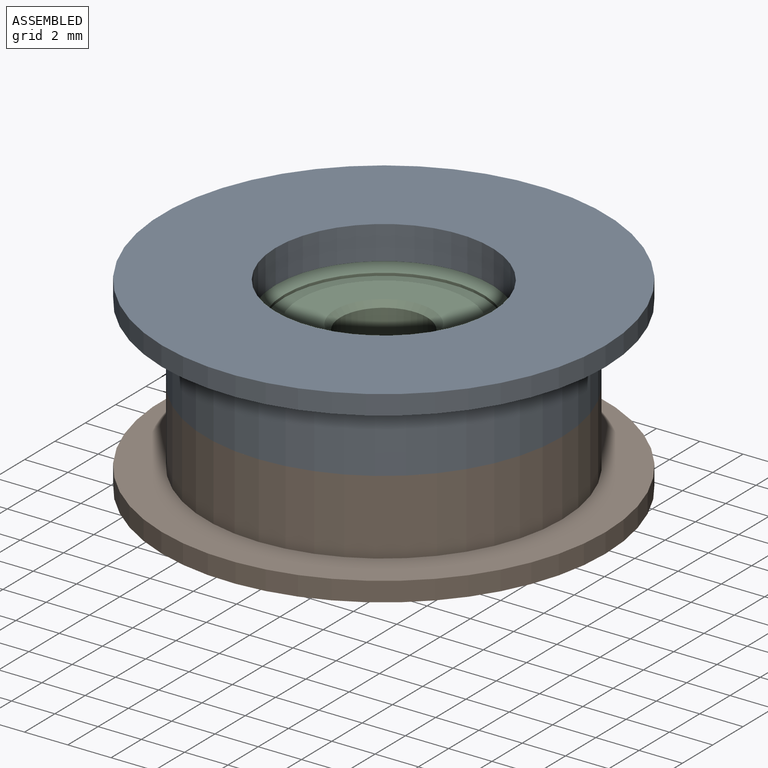
[diagram: assembled view]
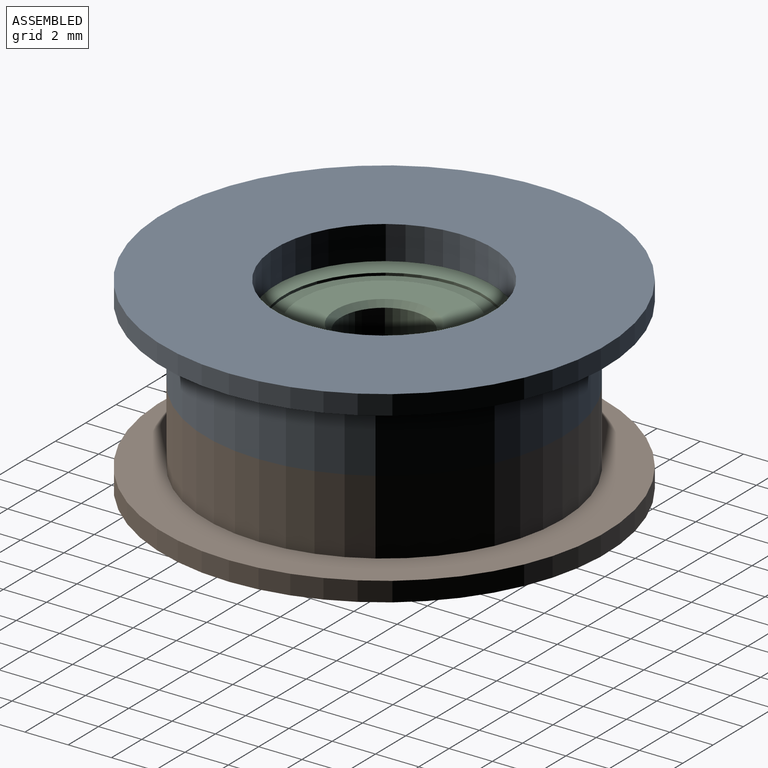
[diagram: assembled view, second angle]
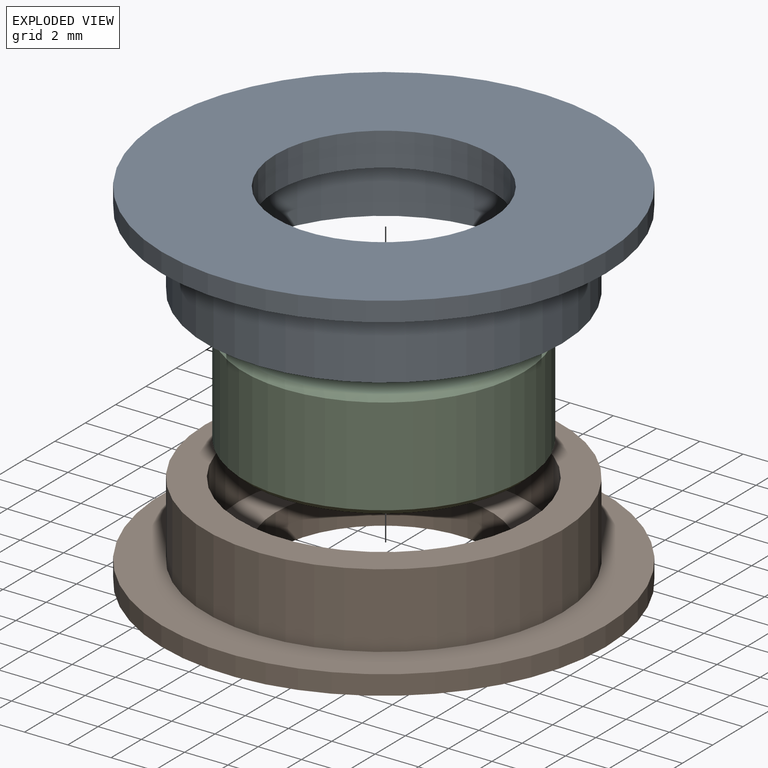
[diagram: exploded view]
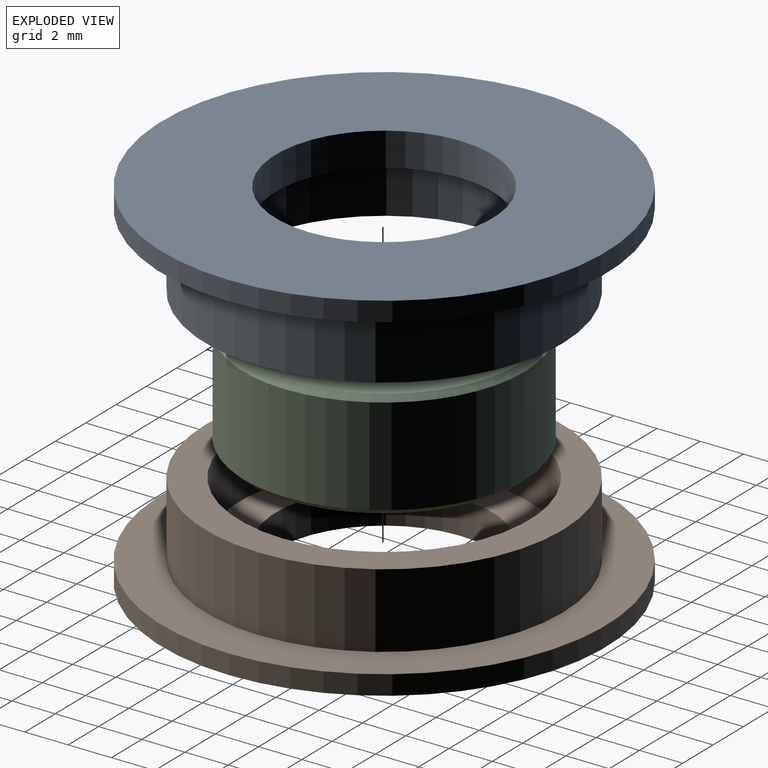
[diagram: exploded view, second angle]
ASSEMBLY  parts=3 mates=2
PART A: 8 faces, bbox 20.5x20.5x4.4 mm
  f0: plane 20.5x20.5mm, normal (0,0,-1), area 251.5mm2, adj f1,f7
  f1: cylinder r=10.25mm len=20.5mm, axis (0,0,1), area 58mm2, adj f0,f2
  f2: plane 20.5x20.5mm, normal (0,0,1), area 116.2mm2, adj f1,f3
  f3: cylinder r=8.25mm len=16.5mm, axis (0,0,1), area 178.8mm2, adj f2,f4
  f4: plane 16.5x16.5mm, normal (0,0,1), area 72.8mm2, adj f3,f5
  f5: cylinder r=6.7mm len=13.4mm, axis (0,0,1), area 117.9mm2, adj f4,f6
  f6: plane 13.4x13.4mm, normal (0,0,1), area 62.5mm2, adj f5,f7
  f7: cylinder r=5mm len=10mm, axis (0,0,1), area 48.7mm2, adj f0,f6
PART B: same geometry as A
PART C: 24 faces, bbox 13x13x5 mm
  f0: cylinder r=4.6mm len=9.2mm, axis (0,0,1), area 3.6mm2, adj f6,f14
  f1: cone r=6.5mm half-angle=45deg, axis (0,0,-1), area 14.2mm2, adj f2,f6
  f2: cylinder r=6.5mm len=13mm, axis (0,0,1), area 183.8mm2, adj f1,f3
  f3: cone r=6.25mm half-angle=45deg, axis (0,0,1), area 14.2mm2, adj f2,f4
  f4: plane 12.5x12.5mm, normal (0,0,-1), area 56.2mm2, adj f3,f5
  f5: cylinder r=4.6mm len=9.2mm, axis (0,0,1), area 3.6mm2, adj f4,f15
  f6: plane 12.5x12.5mm, normal (0,0,1), area 56.2mm2, adj f0,f1
  f7: cylinder r=3.9mm len=7.8mm, axis (0,0,1), area 3.1mm2, adj f10,f15
  f8: plane 7.8x7.8mm, normal (0,0,1), area 31.8mm2, adj f9,f13
  f9: cylinder r=3.9mm len=7.8mm, axis (0,0,1), area 3.1mm2, adj f8,f14
  f10: plane 7.8x7.8mm, normal (0,0,-1), area 31.8mm2, adj f7,f11
  f11: cone r=2mm half-angle=45deg, axis (0,0,-1), area 4.7mm2, adj f10,f12
  f12: cylinder r=2mm len=4.5mm, axis (0,0,1), area 56.5mm2, adj f11,f13
  f13: cone r=2.25mm half-angle=45deg, axis (0,0,1), area 4.7mm2, adj f8,f12
  f14: plane 9.2x9.2mm, normal (0,0,1), area 18.8mm2, adj f0,f9
  f15: plane 9.2x9.2mm, normal (0,0,-1), area 18.8mm2, adj f5,f7
  f16: cylinder r=4.6mm len=9.2mm, axis (0,0,1), area 1.6mm2, adj f17,f20
  f17: torus R=4.25mm, axis (0,0,1), area 95mm2, adj f16,f18
  f18: cylinder r=4.6mm len=9.2mm, axis (0,0,1), area 1.6mm2, adj f17,f23
  f19: cylinder r=3.9mm len=7.8mm, axis (0,0,1), area 1.3mm2, adj f20,f21
  f20: plane 9.2x9.2mm, normal (0,0,1), area 18.8mm2, adj f16,f19
  f21: torus R=4.25mm, axis (0,0,1), area 62.4mm2, adj f19,f22
  f22: cylinder r=3.9mm len=7.8mm, axis (0,0,1), area 1.3mm2, adj f21,f23
  f23: plane 9.2x9.2mm, normal (0,0,-1), area 18.8mm2, adj f18,f22
PLACE A rot(axis=(1,0,0),180deg) t=(0,0,0)mm
PLACE B at identity
PLACE C at identity fixed
MATE fastened A.f1 <-> C.f0  axis (0,0,-1) through (0,0,0)mm
MATE fastened B.f1 <-> C.f0  axis (0,0,1) through (0,0,0)mm
